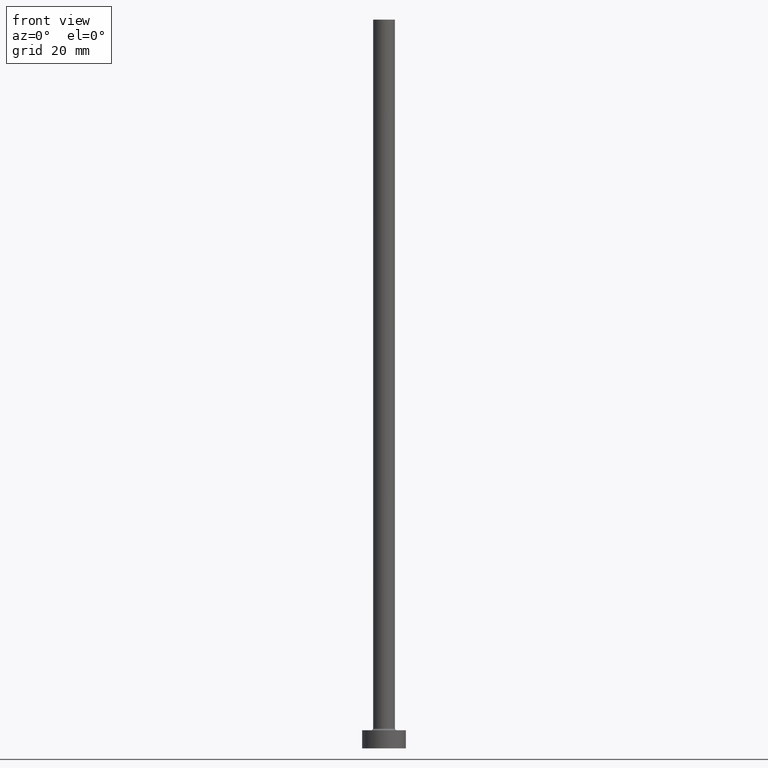
[diagram: clean part render]
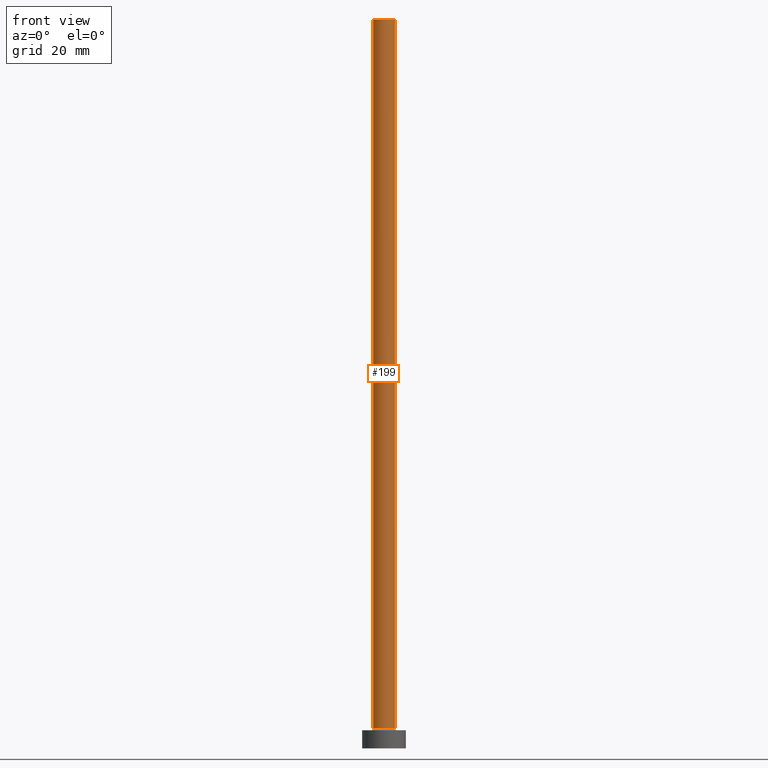
[diagram: same view with one face highlighted and labeled with its STEP entity id]
A machine part, front view. The second image highlights one B-rep face of the part: STEP entity #199.
In plain terms, the highlighted cylindrical surface (edge-blend (fillet) strip) has radius 3 mm, axis along (-0, -0, -1).
Its self-contained STEP definition (entity closure, byte-faithful):
#7 = CYLINDRICAL_SURFACE ( 'NONE', #176, 3.000000000000000444 ) ;
#28 = EDGE_CURVE ( 'NONE', #126, #442, #146, .T. ) ;
#31 = VECTOR ( 'NONE', #240, 1000.000000000000000 ) ;
#49 = ORIENTED_EDGE ( 'NONE', *, *, #333, .F. ) ;
#51 = AXIS2_PLACEMENT_3D ( 'NONE', #269, #418, #98 ) ;
#55 = CARTESIAN_POINT ( 'NONE',  ( 3.000000000000000444, 3.673940397442060361E-16, 200.0000000000000000 ) ) ;
#64 = CARTESIAN_POINT ( 'NONE',  ( -3.000000000000000444, 0.000000000000000000, 200.0000000000000000 ) ) ;
#72 = CIRCLE ( 'NONE', #116, 3.000000000000000444 ) ;
#96 = DIRECTION ( 'NONE',  ( 1.000000000000000000, 0.000000000000000000, 0.000000000000000000 ) ) ;
#98 = DIRECTION ( 'NONE',  ( 1.000000000000000000, 0.000000000000000000, 0.000000000000000000 ) ) ;
#101 = VECTOR ( 'NONE', #369, 1000.000000000000000 ) ;
#106 = VERTEX_POINT ( 'NONE', #134 ) ;
#116 = AXIS2_PLACEMENT_3D ( 'NONE', #260, #338, #96 ) ;
#126 = VERTEX_POINT ( 'NONE', #443 ) ;
#134 = CARTESIAN_POINT ( 'NONE',  ( -3.000000000000000444, 0.000000000000000000, 5.500000000000005329 ) ) ;
#146 = LINE ( 'NONE', #55, #101 ) ;
#147 = EDGE_LOOP ( 'NONE', ( #169, #49, #177, #346 ) ) ;
#151 = FACE_OUTER_BOUND ( 'NONE', #147, .T. ) ;
#169 = ORIENTED_EDGE ( 'NONE', *, *, #28, .F. ) ;
#176 = AXIS2_PLACEMENT_3D ( 'NONE', #361, #186, #181 ) ;
#177 = ORIENTED_EDGE ( 'NONE', *, *, #184, .T. ) ;
#181 = DIRECTION ( 'NONE',  ( -1.000000000000000000, 0.000000000000000000, 0.000000000000000000 ) ) ;
#184 = EDGE_CURVE ( 'NONE', #287, #106, #234, .T. ) ;
#186 = DIRECTION ( 'NONE',  ( -0.000000000000000000, -0.000000000000000000, -1.000000000000000000 ) ) ;
#199 = ADVANCED_FACE ( 'NONE', ( #151 ), #7, .T. ) ;
#234 = LINE ( 'NONE', #341, #31 ) ;
#240 = DIRECTION ( 'NONE',  ( -0.000000000000000000, -0.000000000000000000, -1.000000000000000000 ) ) ;
#260 = CARTESIAN_POINT ( 'NONE',  ( 0.000000000000000000, 0.000000000000000000, 200.0000000000000000 ) ) ;
#269 = CARTESIAN_POINT ( 'NONE',  ( 0.000000000000000000, 0.000000000000000000, 5.500000000000005329 ) ) ;
#287 = VERTEX_POINT ( 'NONE', #64 ) ;
#320 = CARTESIAN_POINT ( 'NONE',  ( 3.000000000000000444, 3.673940397442060361E-16, 5.500000000000005329 ) ) ;
#333 = EDGE_CURVE ( 'NONE', #287, #126, #72, .T. ) ;
#338 = DIRECTION ( 'NONE',  ( 0.000000000000000000, 0.000000000000000000, 1.000000000000000000 ) ) ;
#341 = CARTESIAN_POINT ( 'NONE',  ( -3.000000000000000444, 0.000000000000000000, 200.0000000000000000 ) ) ;
#346 = ORIENTED_EDGE ( 'NONE', *, *, #397, .T. ) ;
#356 = CIRCLE ( 'NONE', #51, 3.000000000000000444 ) ;
#361 = CARTESIAN_POINT ( 'NONE',  ( 0.000000000000000000, 0.000000000000000000, 200.0000000000000000 ) ) ;
#369 = DIRECTION ( 'NONE',  ( -0.000000000000000000, -0.000000000000000000, -1.000000000000000000 ) ) ;
#397 = EDGE_CURVE ( 'NONE', #106, #442, #356, .T. ) ;
#418 = DIRECTION ( 'NONE',  ( 0.000000000000000000, 0.000000000000000000, 1.000000000000000000 ) ) ;
#442 = VERTEX_POINT ( 'NONE', #320 ) ;
#443 = CARTESIAN_POINT ( 'NONE',  ( 3.000000000000000444, 3.673940397442060361E-16, 200.0000000000000000 ) ) ;